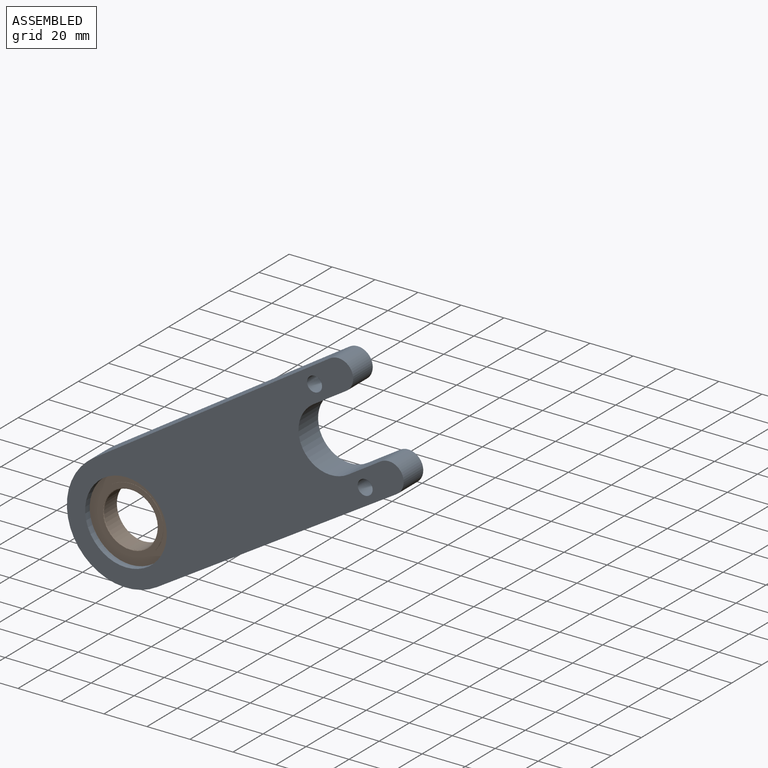
[diagram: assembled view]
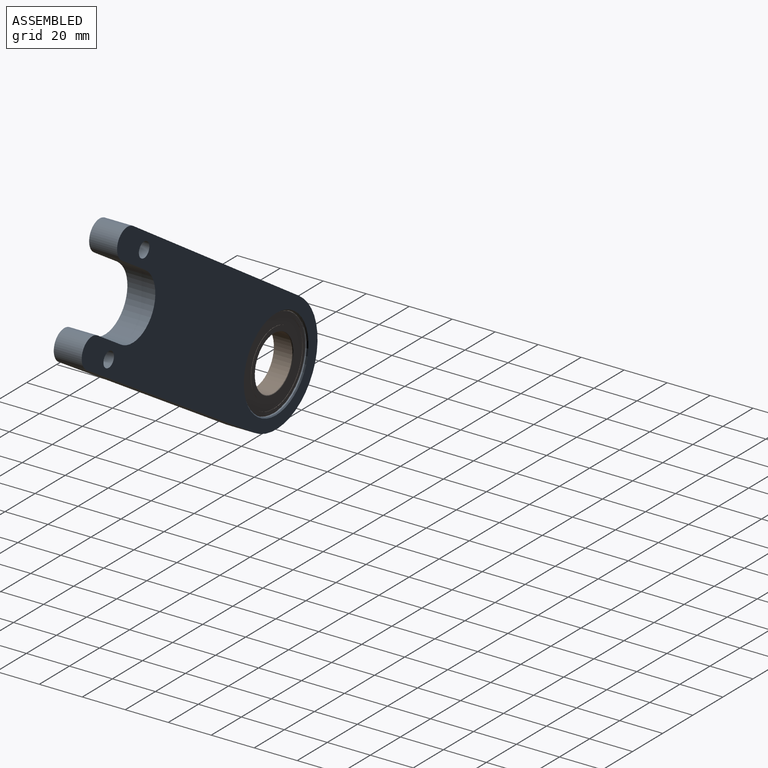
[diagram: assembled view, second angle]
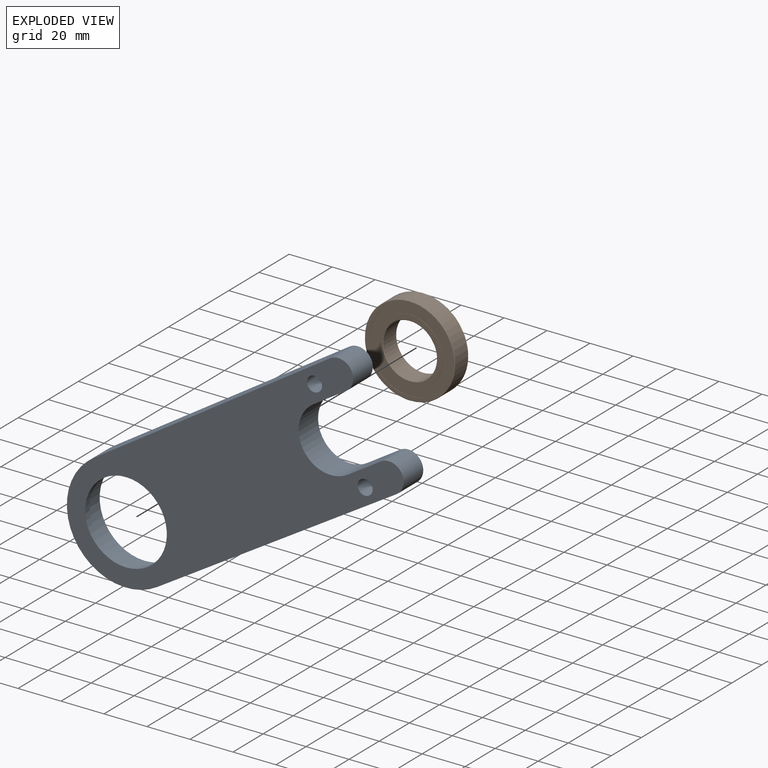
[diagram: exploded view]
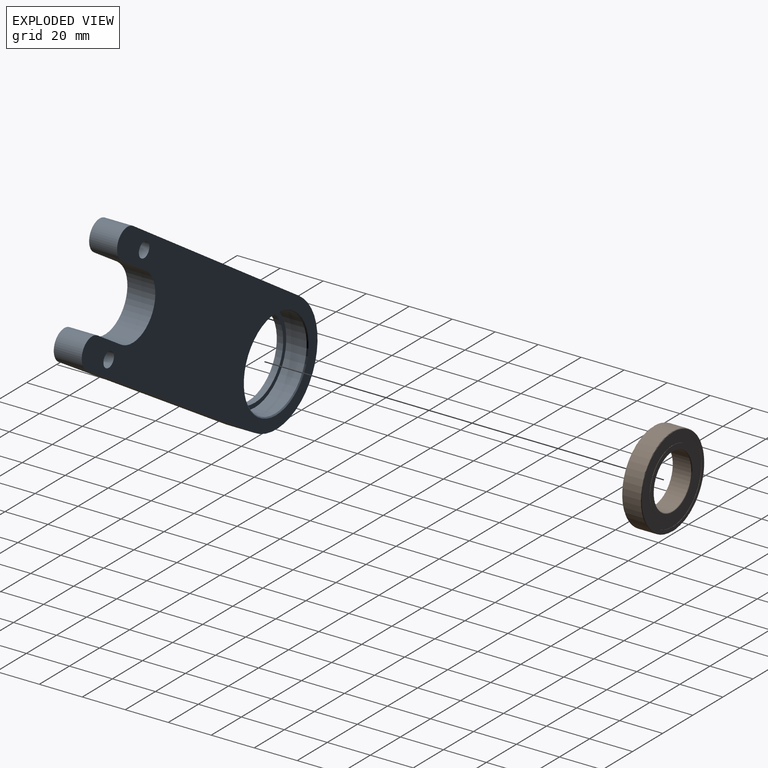
[diagram: exploded view, second angle]
ASSEMBLY  parts=2 mates=2
PART A: 18 faces, bbox 156.7x13x123 mm
  f0: plane 109.91x71.28mm, normal (-0.54,0,0.84), area 1703mm2, adj f1,f8,f9,f11
  f1: cylinder r=27.5mm len=50.57mm, axis (0,1,0), area 1115.3mm2, adj f0,f2,f8,f9
  f2: plane 111.43x68.87mm, normal (0.53,0,-0.85), area 1703mm2, adj f1,f8,f9,f13
  f3: plane 15.21x13mm, normal (-0.53,0,0.84), area 234mm2, adj f4,f8,f9,f12
  f4: cylinder r=15mm len=27.67mm, axis (0,1,0), area 612.6mm2, adj f3,f6,f8,f9
  f5: cylinder r=3.5mm len=13mm, axis (0,1,0), area 285.9mm2, adj f8,f9
  f6: plane 15.21x13mm, normal (0.53,0,-0.84), area 234mm2, adj f4,f8,f9,f10
  f7: cylinder r=3.5mm len=13mm, axis (0,1,0), area 285.9mm2, adj f8,f9
  f8: plane 156.71x122.98mm, normal (0,-1,0), area 6614.9mm2, adj f0,f1,f2,f3,f4,f5,f6,f7
  f9: plane 156.71x122.98mm, normal (0,1,0), area 6296.8mm2, adj f0,f1,f2,f3,f4,f5,f6,f7
  f10: cylinder r=7mm len=13mm, axis (0,1,0), area 142.4mm2, adj f6,f8,f9,f11
  f11: cylinder r=7mm len=13mm, axis (0,-1,0), area 143.4mm2, adj f0,f8,f9,f10
  f12: cylinder r=7mm len=13mm, axis (0,-1,0), area 142.4mm2, adj f3,f8,f9,f13
  f13: cylinder r=7mm len=13mm, axis (0,1,0), area 143.4mm2, adj f2,f8,f9,f12
  f14: cylinder r=21mm len=42mm, axis (0,1,0), area 1253.5mm2, adj f15,f17
  f15: plane 42x42mm, normal (0,1,0), area 251.3mm2, adj f14,f16
  f16: cylinder r=19mm len=38mm, axis (0,1,0), area 358.1mm2, adj f8,f15
  f17: cone r=21.5mm half-angle=45deg, axis (0,1,0), area 94.4mm2, adj f9,f14
PART B: 24 faces, bbox 9x45.5x45.5 mm
  f0: cylinder r=15.22mm len=30.44mm, axis (1,0,0), area 10.3mm2, adj f14,f15
  f1: plane 38.07x38.07mm, normal (-1,0,0), area 410.6mm2, adj f7,f9
  f2: cylinder r=19.04mm len=38.07mm, axis (1,0,0), area 12.9mm2, adj f3,f15
  f3: plane 41.4x41.4mm, normal (1,0,0), area 207.7mm2, adj f2,f4
  f4: torus R=20.7mm, axis (1,0,0), area 61.8mm2, adj f3,f5
  f5: cylinder r=21mm len=42mm, axis (1,0,0), area 1108.4mm2, adj f4,f6
  f6: torus R=20.7mm, axis (1,0,0), area 61.9mm2, adj f5,f8
  f7: cylinder r=19.04mm len=38.07mm, axis (1,0,0), area 12.9mm2, adj f1,f8
  f8: plane 41.4x41.4mm, normal (-1,0,0), area 207.9mm2, adj f6,f7
  f9: cylinder r=15.22mm len=30.44mm, axis (1,0,0), area 10.3mm2, adj f1,f12
  f10: torus R=12.8mm, axis (1,0,0), area 37.3mm2, adj f11,f12
  f11: cylinder r=12.5mm len=25mm, axis (1,0,0), area 659.7mm2, adj f10,f13
  f12: plane 30.44x30.44mm, normal (-1,0,0), area 213mm2, adj f9,f10
  f13: torus R=12.8mm, axis (1,0,0), area 37.3mm2, adj f11,f14
  f14: plane 30.44x30.44mm, normal (1,0,0), area 213.1mm2, adj f0,f13
  f15: plane 38.07x38.07mm, normal (1,0,0), area 410.6mm2, adj f0,f2
  f16: plane 36.56x36.56mm, normal (-1,0,0), area 322mm2, adj f19,f23
  f17: cylinder r=18.28mm len=36.56mm, axis (1,0,0), area 235mm2, adj f18,f20
  f18: torus R=16.75mm, axis (1,0,0), area 563.1mm2, adj f17,f19
  f19: cylinder r=18.28mm len=36.56mm, axis (1,0,0), area 235mm2, adj f16,f18
  f20: plane 36.56x36.56mm, normal (1,0,0), area 322mm2, adj f17,f21
  f21: cylinder r=15.22mm len=30.44mm, axis (1,0,0), area 195.7mm2, adj f20,f22
  f22: torus R=16.75mm, axis (1,0,0), area 432.3mm2, adj f21,f23
  f23: cylinder r=15.22mm len=30.44mm, axis (1,0,0), area 195.7mm2, adj f16,f22
PLACE A t=(-94.77,45.83,-52.41)mm fixed
PLACE B rot(axis=(0,0,1),90deg) t=(-94.77,35.83,60.59)mm
MATE cylindrical B.f0 <-> A.f14  axis (0,1,0) through (-94.77,40.33,60.59)mm
MATE planar A.f14 <-> B.f0  axis (0,1,0) through (-94.77,35.83,60.59)mm
